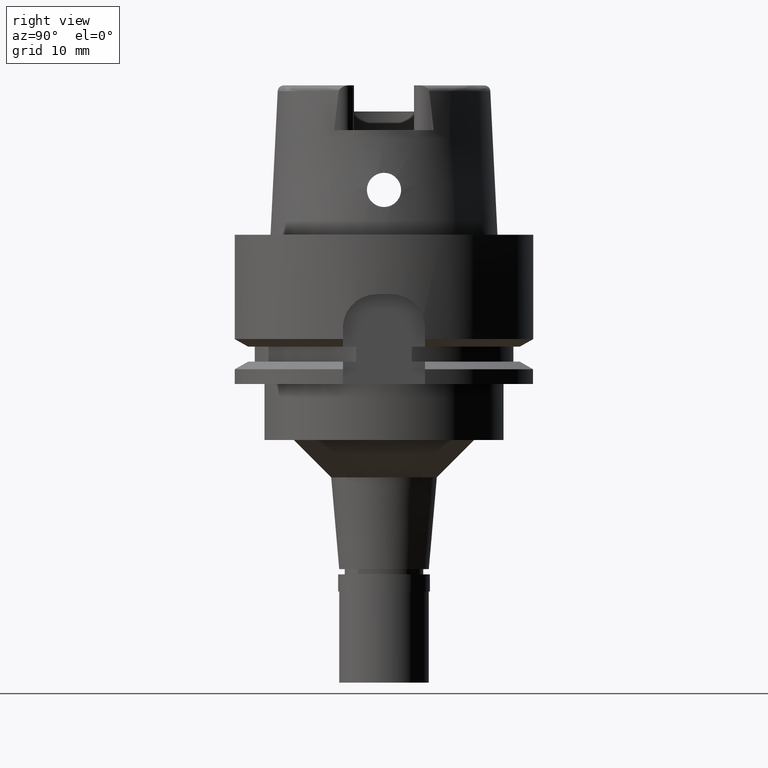
[diagram: clean part render]
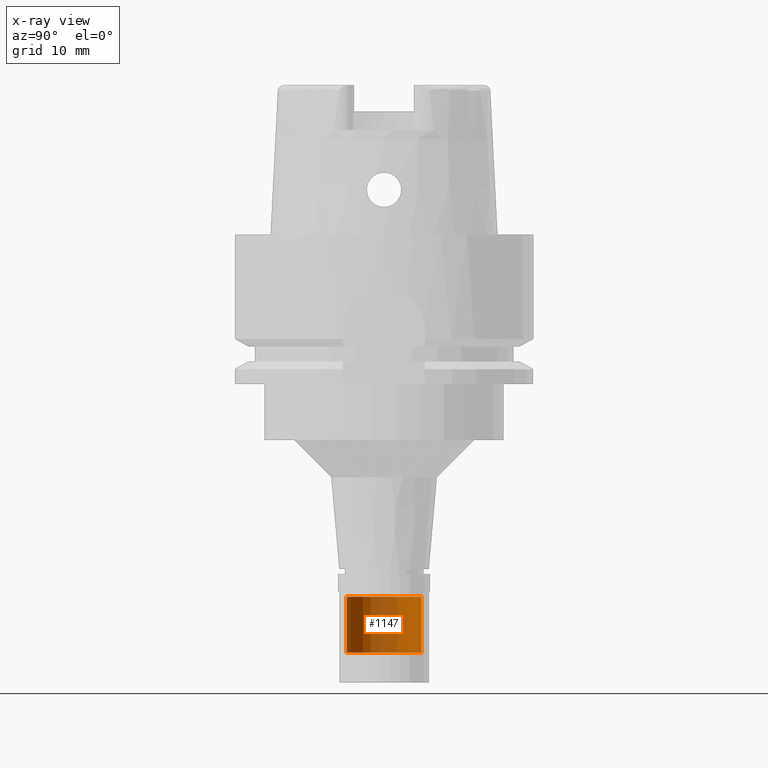
[diagram: x-ray — body ghosted, one internal face saturated and labeled with its STEP entity id]
A machine part, right view, then the same camera in x-ray: the body is ghosted and one INTERNAL B-rep face — a face not visible from any outside direction — is saturated and labeled: STEP entity #1147.
In plain terms, the highlighted cylindrical surface (partial cylindrical patch) has radius 5 mm, axis along (0, 0, -1).
Its self-contained STEP definition (entity closure, byte-faithful):
#8 = VERTEX_POINT ( 'NONE', #4660 ) ;
#145 = ORIENTED_EDGE ( 'NONE', *, *, #5125, .T. ) ;
#268 = CARTESIAN_POINT ( 'NONE',  ( 0.0000000000000000000, 5.000000000000000000, -48.50000000000000000 ) ) ;
#438 = DIRECTION ( 'NONE',  ( 0.0000000000000000000, 0.0000000000000000000, -1.000000000000000000 ) ) ;
#468 = DIRECTION ( 'NONE',  ( 0.0000000000000000000, -1.000000000000000000, 0.0000000000000000000 ) ) ;
#535 = CIRCLE ( 'NONE', #3412, 5.000000000000000000 ) ;
#607 = CARTESIAN_POINT ( 'NONE',  ( 0.0000000000000000000, 1.516112737344000072E-14, 23.80000000000000071 ) ) ;
#678 = EDGE_LOOP ( 'NONE', ( #2953, #5093, #145, #4655 ) ) ;
#849 = LINE ( 'NONE', #2126, #2768 ) ;
#961 = VECTOR ( 'NONE', #1769, 1000.000000000000000 ) ;
#1041 = FACE_OUTER_BOUND ( 'NONE', #678, .T. ) ;
#1147 = ADVANCED_FACE ( 'NONE', ( #1041 ), #4507, .T. ) ;
#1266 = EDGE_CURVE ( 'NONE', #2595, #3906, #1356, .T. ) ;
#1356 = CIRCLE ( 'NONE', #2311, 5.000000000000000000 ) ;
#1626 = CARTESIAN_POINT ( 'NONE',  ( 0.0000000000000000000, 1.516112737344000072E-14, -48.50000000000000000 ) ) ;
#1769 = DIRECTION ( 'NONE',  ( 0.0000000000000000000, 0.0000000000000000000, -1.000000000000000000 ) ) ;
#1845 = VERTEX_POINT ( 'NONE', #268 ) ;
#2126 = CARTESIAN_POINT ( 'NONE',  ( 0.0000000000000000000, 5.000000000000000000, -48.50000000000000000 ) ) ;
#2232 = LINE ( 'NONE', #4786, #961 ) ;
#2257 = DIRECTION ( 'NONE',  ( 0.0000000000000000000, 0.0000000000000000000, -1.000000000000000000 ) ) ;
#2311 = AXIS2_PLACEMENT_3D ( 'NONE', #4533, #3766, #4959 ) ;
#2447 = CARTESIAN_POINT ( 'NONE',  ( 0.0000000000000000000, -5.000000000000000000, -56.00000000000000000 ) ) ;
#2595 = VERTEX_POINT ( 'NONE', #4847 ) ;
#2768 = VECTOR ( 'NONE', #4192, 1000.000000000000000 ) ;
#2953 = ORIENTED_EDGE ( 'NONE', *, *, #1266, .T. ) ;
#3105 = AXIS2_PLACEMENT_3D ( 'NONE', #607, #2257, #3658 ) ;
#3112 = EDGE_CURVE ( 'NONE', #1845, #2595, #849, .T. ) ;
#3412 = AXIS2_PLACEMENT_3D ( 'NONE', #1626, #438, #468 ) ;
#3658 = DIRECTION ( 'NONE',  ( 0.0000000000000000000, -1.000000000000000000, 0.0000000000000000000 ) ) ;
#3766 = DIRECTION ( 'NONE',  ( 0.0000000000000000000, 0.0000000000000000000, 1.000000000000000000 ) ) ;
#3906 = VERTEX_POINT ( 'NONE', #2447 ) ;
#4192 = DIRECTION ( 'NONE',  ( 0.0000000000000000000, 0.0000000000000000000, -1.000000000000000000 ) ) ;
#4437 = EDGE_CURVE ( 'NONE', #8, #3906, #2232, .T. ) ;
#4507 = CYLINDRICAL_SURFACE ( 'NONE', #3105, 5.000000000000000000 ) ;
#4533 = CARTESIAN_POINT ( 'NONE',  ( 0.0000000000000000000, 1.516112737344000072E-14, -56.00000000000000000 ) ) ;
#4655 = ORIENTED_EDGE ( 'NONE', *, *, #3112, .T. ) ;
#4660 = CARTESIAN_POINT ( 'NONE',  ( 0.0000000000000000000, -5.000000000000000000, -48.50000000000000000 ) ) ;
#4786 = CARTESIAN_POINT ( 'NONE',  ( 0.0000000000000000000, -5.000000000000000000, -48.50000000000000000 ) ) ;
#4847 = CARTESIAN_POINT ( 'NONE',  ( 0.0000000000000000000, 5.000000000000000000, -56.00000000000000000 ) ) ;
#4959 = DIRECTION ( 'NONE',  ( 0.0000000000000000000, 1.000000000000000000, 0.0000000000000000000 ) ) ;
#5093 = ORIENTED_EDGE ( 'NONE', *, *, #4437, .F. ) ;
#5125 = EDGE_CURVE ( 'NONE', #8, #1845, #535, .T. ) ;